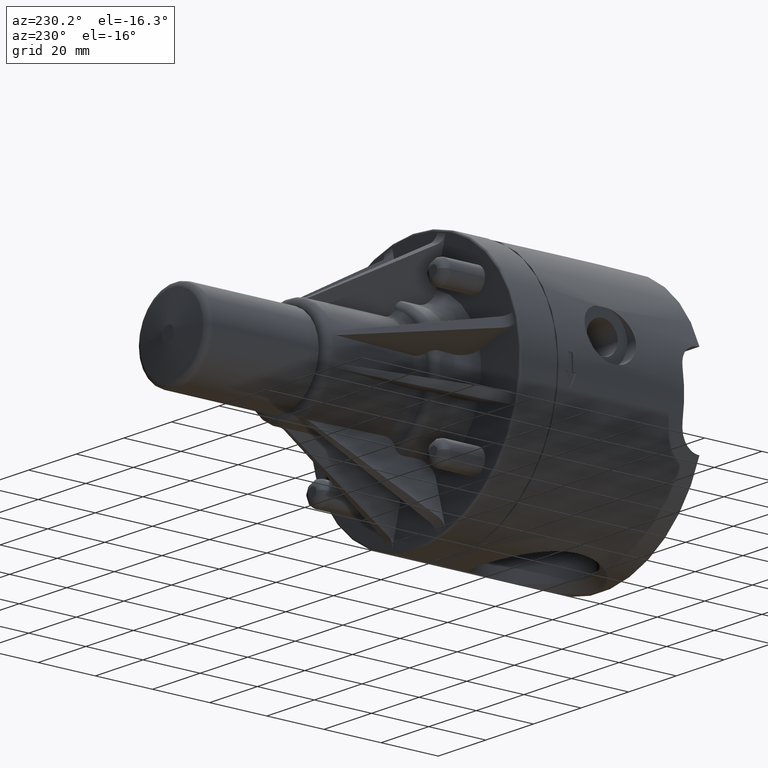
[diagram: clean part render]
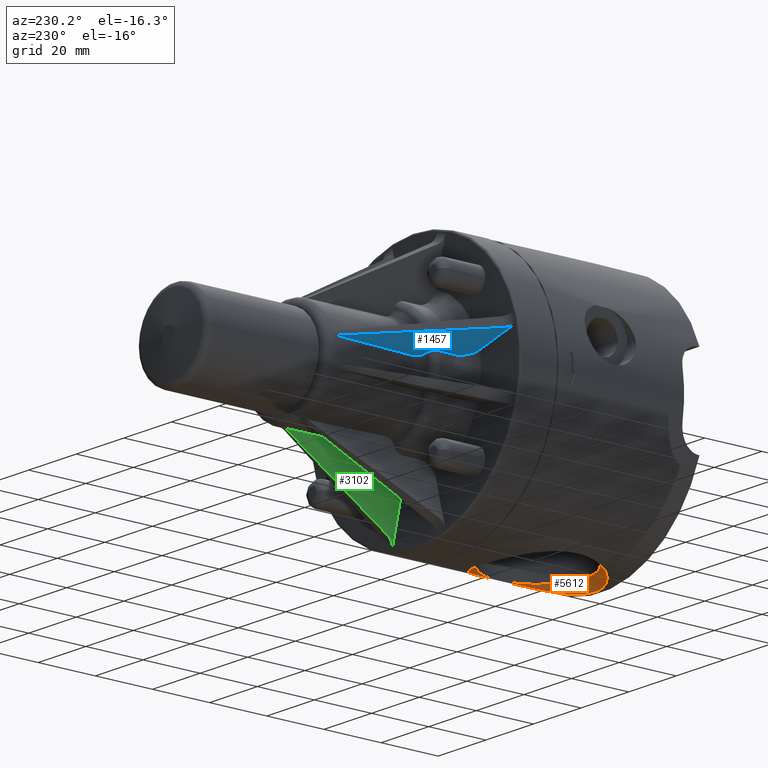
[diagram: same view with three faces highlighted in distinct colors, each labeled with its STEP entity id]
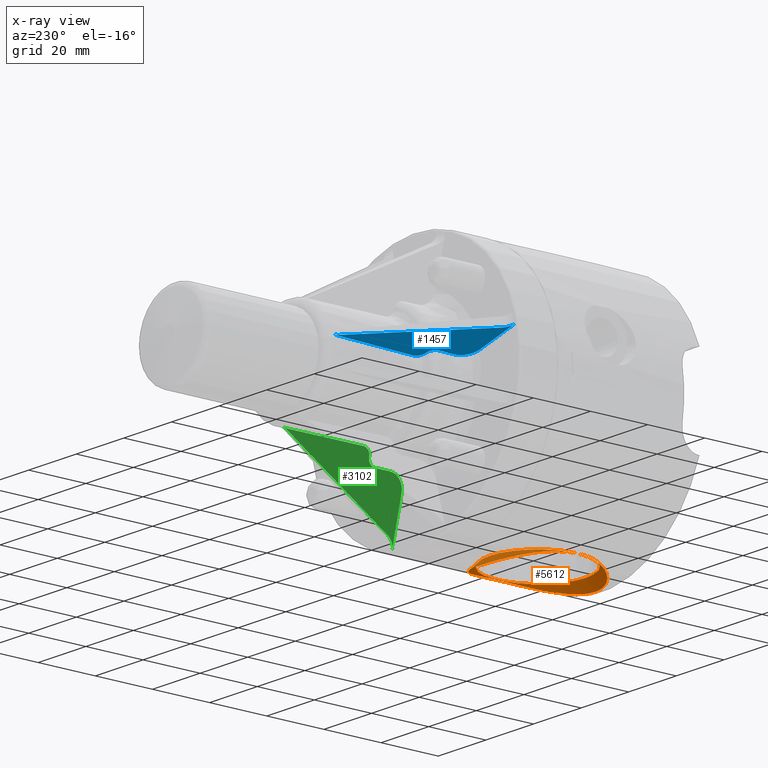
[diagram: x-ray of the same camera — body ghosted, the three highlighted faces saturated]
A machine part, auxiliary view with three faces highlighted in distinct colors.
The next image is the same camera in x-ray (body ghosted, the three faces saturated) — at least one of them is partly hidden behind the body in this view.
Their STEP definitions:

[orange] entity #5612 — the highlighted conical surface has half-angle 45 deg.
#5523=CARTESIAN_POINT('',(0.0,0.858000000000000,-1.685000000000001));
#5524=DIRECTION('',(0.0,0.0,-1.0));
#5525=DIRECTION('',(0.0,1.0,0.0));
#5526=AXIS2_PLACEMENT_3D('',#5523,#5524,#5525);
#5527=CONICAL_SURFACE('',#5526,0.722500000000000,45.000000000000121);
#5528=CARTESIAN_POINT('',(0.0,0.070499999999999,-1.750000000000001));
#5529=VERTEX_POINT('',#5528);
#5530=CARTESIAN_POINT('',(0.0,1.645500000000000,-1.750000000000001));
#5531=VERTEX_POINT('',#5530);
#5532=CARTESIAN_POINT('',(-8.326673E-017,0.070500000000000,-1.750000000000000));
#5533=CARTESIAN_POINT('',(0.046979436653502,0.070500000000000,-1.750000000000000));
#5534=CARTESIAN_POINT('',(0.094644398093947,0.076690375638258,-1.748060443904974));
#5535=CARTESIAN_POINT('',(0.187569108214561,0.101385061686020,-1.740543221869781));
#5536=CARTESIAN_POINT('',(0.232832567383428,0.119878366406201,-1.734975276460539));
#5537=CARTESIAN_POINT('',(0.317788739443529,0.167117370241530,-1.721441390619523));
#5538=CARTESIAN_POINT('',(0.357586828449183,0.195909647458986,-1.713474830616159));
#5539=CARTESIAN_POINT('',(0.429568100615000,0.260483991816263,-1.696860507389469));
#5540=CARTESIAN_POINT('',(0.461754034021425,0.296267477217352,-1.688230176587454));
#5541=CARTESIAN_POINT('',(0.542618125327997,0.403932654220336,-1.664668569603786));
#5542=CARTESIAN_POINT('',(0.586890863196060,0.489508198617011,-1.648945704874737));
#5543=CARTESIAN_POINT('',(0.630455857188645,0.626124288732948,-1.632564267465237));
#5544=CARTESIAN_POINT('',(0.641303903651708,0.673021654527938,-1.628277433428841));
#5545=CARTESIAN_POINT('',(0.655463253852306,0.766529891641007,-1.622629353795142));
#5546=CARTESIAN_POINT('',(0.658771244319595,0.813141454037205,-1.621271244319597));
#5547=CARTESIAN_POINT('',(0.658771244319595,0.902858545962794,-1.621271244319597));
#5548=CARTESIAN_POINT('',(0.655463253852307,0.949470108358992,-1.622629353795142));
#5549=CARTESIAN_POINT('',(0.641303903651708,1.042978345472062,-1.628277433428841));
#5550=CARTESIAN_POINT('',(0.630455857188645,1.089875711267051,-1.632564267465237));
#5551=CARTESIAN_POINT('',(0.586890863196060,1.226491801382988,-1.648945704874737));
#5552=CARTESIAN_POINT('',(0.542618125327998,1.312067345779663,-1.664668569603786));
#5553=CARTESIAN_POINT('',(0.461754034021425,1.419732522782648,-1.688230176587454));
#5554=CARTESIAN_POINT('',(0.429568100615000,1.455516008183736,-1.696860507389469));
#5555=CARTESIAN_POINT('',(0.357586828449184,1.520090352541014,-1.713474830616159));
#5556=CARTESIAN_POINT('',(0.317788739443529,1.548882629758470,-1.721441390619523));
#5557=CARTESIAN_POINT('',(0.232832567383428,1.596121633593798,-1.734975276460539));
#5558=CARTESIAN_POINT('',(0.187569108214561,1.614614938313979,-1.740543221869781));
#5559=CARTESIAN_POINT('',(0.094644398093947,1.639309624361742,-1.748060443904975));
#5560=CARTESIAN_POINT('',(0.046979436653503,1.645500000000000,-1.750000000000000));
#5561=CARTESIAN_POINT('',(1.804112E-016,1.645500000000000,-1.750000000000000));
#5562=B_SPLINE_CURVE_WITH_KNOTS('',3,(#5532,#5533,#5534,#5535,#5536,#5537,#5538,#5539,#5540,#5541,#5542,#5543,#5544,#5545,#5546,#5547,#5548,#5549,#5550,#5551,#5552,#5553,#5554,#5555,#5556,#5557,#5558,#5559,#5560,#5561),.UNSPECIFIED.,.F.,.U.,(4,2,2,2,2,2,2,2,2,2,2,2,2,2,4),(2.799221710144743,3.157205017444432,3.515188324744122,3.873171632043811,4.231154939343500,4.914799179816493,5.256621300052990,5.598443420289486,5.940265540525981,6.282087660762478,6.965731901235472,7.323715208535161,7.681698515834850,8.039681823134540,8.397665130434229),.UNSPECIFIED.);
#5563=EDGE_CURVE('',#5529,#5531,#5562,.T.);
#5564=ORIENTED_EDGE('',*,*,#5563,.F.);
#5565=CARTESIAN_POINT('',(1.804112E-016,1.645500000000000,-1.750000000000000));
#5566=CARTESIAN_POINT('',(-0.046979436653502,1.645500000000000,-1.750000000000000));
#5567=CARTESIAN_POINT('',(-0.094644398093946,1.639309624361742,-1.748060443904975));
#5568=CARTESIAN_POINT('',(-0.187569108214561,1.614614938313979,-1.740543221869781));
#5569=CARTESIAN_POINT('',(-0.232832567383428,1.596121633593798,-1.734975276460539));
#5570=CARTESIAN_POINT('',(-0.317788739443529,1.548882629758469,-1.721441390619523));
#5571=CARTESIAN_POINT('',(-0.357586828449183,1.520090352541014,-1.713474830616159));
#5572=CARTESIAN_POINT('',(-0.429568100615000,1.455516008183736,-1.696860507389469));
#5573=CARTESIAN_POINT('',(-0.461754034021425,1.419732522782648,-1.688230176587454));
#5574=CARTESIAN_POINT('',(-0.542618125327997,1.312067345779663,-1.664668569603786));
#5575=CARTESIAN_POINT('',(-0.586890863196060,1.226491801382989,-1.648945704874737));
#5576=CARTESIAN_POINT('',(-0.630455857188645,1.089875711267052,-1.632564267465237));
#5577=CARTESIAN_POINT('',(-0.641303903651708,1.042978345472062,-1.628277433428841));
#5578=CARTESIAN_POINT('',(-0.655463253852306,0.949470108358992,-1.622629353795142));
#5579=CARTESIAN_POINT('',(-0.658771244319595,0.902858545962795,-1.621271244319597));
#5580=CARTESIAN_POINT('',(-0.658771244319595,0.858000000000000,-1.621271244319597));
#5581=CARTESIAN_POINT('',(-0.658771244319595,0.813141454037205,-1.621271244319597));
#5582=CARTESIAN_POINT('',(-0.655463253852307,0.766529891641007,-1.622629353795142));
#5583=CARTESIAN_POINT('',(-0.641303903651708,0.673021654527938,-1.628277433428841));
#5584=CARTESIAN_POINT('',(-0.630455857188645,0.626124288732948,-1.632564267465237));
#5585=CARTESIAN_POINT('',(-0.586890863196060,0.489508198617012,-1.648945704874737));
#5586=CARTESIAN_POINT('',(-0.542618125327998,0.403932654220336,-1.664668569603786));
#5587=CARTESIAN_POINT('',(-0.461754034021425,0.296267477217352,-1.688230176587454));
#5588=CARTESIAN_POINT('',(-0.429568100615000,0.260483991816264,-1.696860507389469));
#5589=CARTESIAN_POINT('',(-0.357586828449184,0.195909647458986,-1.713474830616159));
#5590=CARTESIAN_POINT('',(-0.317788739443530,0.167117370241530,-1.721441390619523));
#5591=CARTESIAN_POINT('',(-0.232832567383428,0.119878366406201,-1.734975276460539));
#5592=CARTESIAN_POINT('',(-0.187569108214562,0.101385061686020,-1.740543221869781));
#5593=CARTESIAN_POINT('',(-0.094644398093947,0.076690375638258,-1.748060443904975));
#5594=CARTESIAN_POINT('',(-0.046979436653503,0.070500000000000,-1.750000000000000));
#5595=CARTESIAN_POINT('',(-9.714451E-017,0.070500000000000,-1.750000000000000));
#5596=B_SPLINE_CURVE_WITH_KNOTS('',3,(#5565,#5566,#5567,#5568,#5569,#5570,#5571,#5572,#5573,#5574,#5575,#5576,#5577,#5578,#5579,#5580,#5581,#5582,#5583,#5584,#5585,#5586,#5587,#5588,#5589,#5590,#5591,#5592,#5593,#5594,#5595),.UNSPECIFIED.,.F.,.U.,(4,2,2,2,2,2,2,3,2,2,2,2,2,2,4),(8.397665130434229,8.755648437733917,9.113631745033608,9.471615052333297,9.829598359632985,10.513242600105979,10.855064720342476,11.196886840578973,11.538708960815470,11.880531081051966,12.564175321524958,12.922158628824647,13.280141936124338,13.638125243424026,13.996108550723715),.UNSPECIFIED.);
#5597=EDGE_CURVE('',#5531,#5529,#5596,.T.);
#5598=ORIENTED_EDGE('',*,*,#5597,.F.);
#5599=EDGE_LOOP('',(#5564,#5598));
#5600=FACE_OUTER_BOUND('',#5599,.T.);
#5601=CARTESIAN_POINT('',(0.0,1.515500000000000,-1.620000000000001));
#5602=VERTEX_POINT('',#5601);
#5603=CARTESIAN_POINT('',(0.0,0.858000000000000,-1.620000000000001));
#5604=DIRECTION('',(0.0,0.0,1.0));
#5605=DIRECTION('',(0.0,1.0,0.0));
#5606=AXIS2_PLACEMENT_3D('',#5603,#5604,#5605);
#5607=CIRCLE('',#5606,0.657500000000000);
#5608=EDGE_CURVE('',#5602,#5602,#5607,.T.);
#5609=ORIENTED_EDGE('',*,*,#5608,.T.);
#5610=EDGE_LOOP('',(#5609));
#5611=FACE_BOUND('',#5610,.T.);
#5612=ADVANCED_FACE('',(#5600,#5611),#5527,.F.);

[blue] entity #1457 — the highlighted planar face has unit normal (0.2587, -0.0262, 0.9656).
#1170=CARTESIAN_POINT('',(-1.536881267281477,2.632278556963049,0.341431757273109));
#1171=VERTEX_POINT('',#1170);
#1178=CARTESIAN_POINT('',(-1.664127680645382,2.555000000000001,0.373432335502499));
#1179=VERTEX_POINT('',#1178);
#1180=CARTESIAN_POINT('',(-1.663111068363032,2.705000000000000,0.377226384191828));
#1181=DIRECTION('',(-0.258730354279913,0.026176948307873,-0.965594827632935));
#1182=DIRECTION('',(-0.006775092764930,-0.999657324975557,-0.025284990423958));
#1183=AXIS2_PLACEMENT_3D('',#1180,#1181,#1182);
#1184=ELLIPSE('',#1183,0.150051418873630,0.150000000000000);
#1185=EDGE_CURVE('',#1171,#1179,#1184,.T.);
#1210=CARTESIAN_POINT('',(-0.701026602313353,4.173880267457618,0.159257474361927));
#1211=VERTEX_POINT('',#1210);
#1219=CARTESIAN_POINT('',(-0.701026602313353,4.173880267457618,0.159257474361927));
#1220=DIRECTION('',(-0.474093470997399,-0.874390413136919,0.103328535128912));
#1221=VECTOR('',#1220,1.763058797687405);
#1222=LINE('',#1219,#1221);
#1223=EDGE_CURVE('',#1211,#1171,#1222,.T.);
#1249=CARTESIAN_POINT('',(-0.682343417455201,4.246826314709518,0.156228872669415));
#1250=VERTEX_POINT('',#1249);
#1251=CARTESIAN_POINT('',(-0.701026602313353,4.173880267457619,0.159257474361927));
#1252=CARTESIAN_POINT('',(-0.695000985830098,4.184993563903389,0.157944192989050));
#1253=CARTESIAN_POINT('',(-0.690356489269742,4.196843569171221,0.157020953510493));
#1254=CARTESIAN_POINT('',(-0.684051562241608,4.221453470614590,0.155998719486961));
#1255=CARTESIAN_POINT('',(-0.682417754832493,4.234115211044678,0.155904197600084));
#1256=CARTESIAN_POINT('',(-0.682343417455202,4.246826314709518,0.156228872669415));
#1257=B_SPLINE_CURVE_WITH_KNOTS('',3,(#1251,#1252,#1253,#1254,#1255,#1256),.UNSPECIFIED.,.F.,.U.,(4,2,4),(-0.193739459944156,-0.096891857130675,0.0),.UNSPECIFIED.);
#1258=EDGE_CURVE('',#1250,#1211,#1257,.F.);
#1370=CARTESIAN_POINT('',(1.195440544694281,3.033713207108848,-0.379808908483760));
#1371=DIRECTION('',(0.258730354279913,-0.026176948307873,0.965594827632935));
#1372=DIRECTION('',(0.965925826289069,9.732823E-018,-0.258819045102520));
#1373=AXIS2_PLACEMENT_3D('',#1370,#1371,#1372);
#1374=PLANE('',#1373);
#1375=CARTESIAN_POINT('',(-1.078482179354142,2.555000000000000,0.216509096380592));
#1376=VERTEX_POINT('',#1375);
#1377=CARTESIAN_POINT('',(-1.664127680645382,2.555000000000001,0.373432335502499));
#1378=DIRECTION('',(0.965925826289069,0.0,-0.258819045102520));
#1379=VECTOR('',#1378,0.606304837651143);
#1380=LINE('',#1377,#1379);
#1381=EDGE_CURVE('',#1179,#1376,#1380,.T.);
#1382=ORIENTED_EDGE('',*,*,#1381,.F.);
#1383=ORIENTED_EDGE('',*,*,#1185,.F.);
#1384=ORIENTED_EDGE('',*,*,#1223,.F.);
#1385=ORIENTED_EDGE('',*,*,#1258,.F.);
#1386=CARTESIAN_POINT('',(-0.688162459202931,3.155000000000000,0.128189039093733));
#1387=VERTEX_POINT('',#1386);
#1388=CARTESIAN_POINT('',(-2.362782E-017,5.228192150791822,-4.056511E-033));
#1389=DIRECTION('',(0.258730354279913,-0.026176948307873,0.965594827632935));
#1390=DIRECTION('',(0.006775092764742,0.999657324975557,0.025284990424009));
#1391=AXIS2_PLACEMENT_3D('',#1388,#1389,#1390);
#1392=ELLIPSE('',#1391,26.741085009877246,0.700000000000000);
#1393=EDGE_CURVE('',#1387,#1250,#1392,.F.);
#1394=ORIENTED_EDGE('',*,*,#1393,.F.);
#1395=CARTESIAN_POINT('',(-0.785511766587942,3.055000000000000,0.151562741305009));
#1396=VERTEX_POINT('',#1395);
#1397=CARTESIAN_POINT('',(-0.785511766587944,3.055000000000000,0.151562741305010));
#1398=CARTESIAN_POINT('',(-0.773551489720114,3.055000000000000,0.148357994777022));
#1399=CARTESIAN_POINT('',(-0.759454529887154,3.057893656764100,0.144659171827574));
#1400=CARTESIAN_POINT('',(-0.737311355469627,3.067354889651928,0.138982416939468));
#1401=CARTESIAN_POINT('',(-0.725343441787702,3.075587286834391,0.135998801629014));
#1402=CARTESIAN_POINT('',(-0.708360636729014,3.093047231230306,0.131921605899578));
#1403=CARTESIAN_POINT('',(-0.700337038189733,3.105357319234435,0.130105411461567));
#1404=CARTESIAN_POINT('',(-0.691086109678909,3.128153870403676,0.128244639408890));
#1405=CARTESIAN_POINT('',(-0.688221763779662,3.142670159398393,0.127870671909975));
#1406=CARTESIAN_POINT('',(-0.688162459202931,3.155000000000000,0.128189039093733));
#1407=B_SPLINE_CURVE_WITH_KNOTS('',3,(#1397,#1398,#1399,#1400,#1401,#1402,#1403,#1404,#1405,#1406),.UNSPECIFIED.,.F.,.U.,(4,2,2,2,4),(0.376854774728702,0.471207060641792,0.565372503968186,0.659390030644902,0.753375817397423),.UNSPECIFIED.);
#1408=EDGE_CURVE('',#1396,#1387,#1407,.T.);
#1409=ORIENTED_EDGE('',*,*,#1408,.F.);
#1410=CARTESIAN_POINT('',(-0.882836101336889,2.955000000000000,0.174929752118619));
#1411=VERTEX_POINT('',#1410);
#1412=CARTESIAN_POINT('',(-0.882836101336888,2.955000000000000,0.174929752118619));
#1413=CARTESIAN_POINT('',(-0.882773194903623,2.967332582950760,0.175247228531982));
#1414=CARTESIAN_POINT('',(-0.879905528031789,2.981851543244706,0.174872443599161));
#1415=CARTESIAN_POINT('',(-0.870652870378624,3.004649469832383,0.173011245511317));
#1416=CARTESIAN_POINT('',(-0.862631384190243,3.016959886403182,0.171195625983356));
#1417=CARTESIAN_POINT('',(-0.845655331111156,3.034417600930554,0.167120178990421));
#1418=CARTESIAN_POINT('',(-0.833694307081620,3.042648294680131,0.164138363577273));
#1419=CARTESIAN_POINT('',(-0.811560618327808,3.052107735331143,0.158464101778167));
#1420=CARTESIAN_POINT('',(-0.797468156378785,3.055000000000000,0.154766446293857));
#1421=CARTESIAN_POINT('',(-0.785511766587942,3.055000000000000,0.151562741305009));
#1422=B_SPLINE_CURVE_WITH_KNOTS('',3,(#1412,#1413,#1414,#1415,#1416,#1417,#1418,#1419,#1420,#1421),.UNSPECIFIED.,.F.,.U.,(4,2,2,2,4),(0.0,0.094006637274788,0.188018182703629,0.282140015038897,0.376461636561581),.UNSPECIFIED.);
#1423=EDGE_CURVE('',#1411,#1396,#1422,.T.);
#1424=ORIENTED_EDGE('',*,*,#1423,.F.);
#1425=CARTESIAN_POINT('',(-0.883841446146808,2.754999999999999,0.169777201276018));
#1426=VERTEX_POINT('',#1425);
#1427=CARTESIAN_POINT('',(-2.362782E-017,5.228192150791820,-4.056511E-033));
#1428=DIRECTION('',(0.258730354279913,-0.026176948307873,0.965594827632935));
#1429=DIRECTION('',(0.006775092764742,0.999657324975557,0.025284990424009));
#1430=AXIS2_PLACEMENT_3D('',#1427,#1428,#1429);
#1431=ELLIPSE('',#1430,34.381395012699279,0.899999999999999);
#1432=EDGE_CURVE('',#1426,#1411,#1431,.F.);
#1433=ORIENTED_EDGE('',*,*,#1432,.F.);
#1434=CARTESIAN_POINT('',(-1.078482179354141,2.555000000000000,0.216509096380592));
#1435=CARTESIAN_POINT('',(-1.066535612349206,2.555000000000000,0.213308023399295));
#1436=CARTESIAN_POINT('',(-1.053479837701843,2.556217885510780,0.209842755589138));
#1437=CARTESIAN_POINT('',(-1.027890422406276,2.561471903867086,0.203128527081712));
#1438=CARTESIAN_POINT('',(-1.015356804658083,2.565508160370529,0.199879575872806));
#1439=CARTESIAN_POINT('',(-0.993233611524415,2.574957053876605,0.194207840437119));
#1440=CARTESIAN_POINT('',(-0.981604253164174,2.581236633620061,0.191262000533206));
#1441=CARTESIAN_POINT('',(-0.959870348228601,2.596183871431072,0.185843632805235));
#1442=CARTESIAN_POINT('',(-0.949765909907674,2.604851699085820,0.183371138585308));
#1443=CARTESIAN_POINT('',(-0.932779151839400,2.622303274375320,0.179292656766509));
#1444=CARTESIAN_POINT('',(-0.924331850848877,2.632693896922299,0.177310895541277));
#1445=CARTESIAN_POINT('',(-0.909738933819802,2.655073180475888,0.174007429995609));
#1446=CARTESIAN_POINT('',(-0.903593424070046,2.667061915289674,0.172685756156058));
#1447=CARTESIAN_POINT('',(-0.894331708342628,2.689869939347136,0.170822404703515));
#1448=CARTESIAN_POINT('',(-0.890362276371969,2.702789140109283,0.170109033763845));
#1449=CARTESIAN_POINT('',(-0.885147738261019,2.729185125918652,0.169427388711543));
#1450=CARTESIAN_POINT('',(-0.883902551677976,2.742661894506163,0.169459092598122));
#1451=CARTESIAN_POINT('',(-0.883841446146808,2.755000000000000,0.169777201276019));
#1452=B_SPLINE_CURVE_WITH_KNOTS('',3,(#1434,#1435,#1436,#1437,#1438,#1439,#1440,#1441,#1442,#1443,#1444,#1445,#1446,#1447,#1448,#1449,#1450,#1451),.UNSPECIFIED.,.F.,.U.,(4,2,2,2,2,2,2,2,4),(0.753448376052435,0.847692507537499,0.941936639022563,1.036029227545029,1.130121816067495,1.224189454701717,1.318257093335939,1.412305853021050,1.506354612706161),.UNSPECIFIED.);
#1453=EDGE_CURVE('',#1376,#1426,#1452,.T.);
#1454=ORIENTED_EDGE('',*,*,#1453,.F.);
#1455=EDGE_LOOP('',(#1382,#1383,#1384,#1385,#1394,#1409,#1424,#1433,#1454));
#1456=FACE_OUTER_BOUND('',#1455,.T.);
#1457=ADVANCED_FACE('',(#1456),#1374,.F.);

[green] entity #3102 — the highlighted planar face has unit normal (0.9656, -0.0262, 0.2587).
#2068=CARTESIAN_POINT('',(0.156228872669417,4.246826314709518,-0.682343417455201));
#2069=VERTEX_POINT('',#2068);
#2077=CARTESIAN_POINT('',(0.128189039093734,3.155000000000000,-0.688162459202931));
#2078=VERTEX_POINT('',#2077);
#2079=CARTESIAN_POINT('',(-2.362782E-017,5.228192150791780,-4.056511E-033));
#2080=DIRECTION('',(0.965594827632935,-0.026176948307873,0.258730354279914));
#2081=DIRECTION('',(0.025284990424009,0.999657324975557,0.006775092764742));
#2082=AXIS2_PLACEMENT_3D('',#2079,#2080,#2081);
#2083=ELLIPSE('',#2082,26.741085009877033,0.700000000000000);
#2084=EDGE_CURVE('',#2069,#2078,#2083,.F.);
#2252=CARTESIAN_POINT('',(0.216509096380593,2.555000000000000,-1.078482179354141));
#2253=VERTEX_POINT('',#2252);
#2261=CARTESIAN_POINT('',(0.373432335502500,2.555000000000001,-1.664127680645381));
#2262=VERTEX_POINT('',#2261);
#2263=CARTESIAN_POINT('',(0.216509096380593,2.555000000000001,-1.078482179354141));
#2264=DIRECTION('',(0.258819045102521,0.0,-0.965925826289068));
#2265=VECTOR('',#2264,0.606304837651144);
#2266=LINE('',#2263,#2265);
#2267=EDGE_CURVE('',#2253,#2262,#2266,.T.);
#2853=CARTESIAN_POINT('',(0.341431757273110,2.632278556963049,-1.536881267281476));
#2854=VERTEX_POINT('',#2853);
#2855=CARTESIAN_POINT('',(0.377226384191829,2.705000000000000,-1.663111068363031));
#2856=DIRECTION('',(-0.965594827632935,0.026176948307873,-0.258730354279914));
#2857=DIRECTION('',(-0.025284990423993,-0.999657324975557,-0.006775092764799));
#2858=AXIS2_PLACEMENT_3D('',#2855,#2856,#2857);
#2859=ELLIPSE('',#2858,0.150051418873630,0.150000000000000);
#2860=EDGE_CURVE('',#2262,#2854,#2859,.T.);
#2887=CARTESIAN_POINT('',(0.159257474361929,4.173880267457618,-0.701026602313353));
#2888=VERTEX_POINT('',#2887);
#2889=CARTESIAN_POINT('',(0.341431757273110,2.632278556963049,-1.536881267281476));
#2890=DIRECTION('',(-0.103328535128913,0.874390413136919,0.474093470997399));
#2891=VECTOR('',#2890,1.763058797687405);
#2892=LINE('',#2889,#2891);
#2893=EDGE_CURVE('',#2854,#2888,#2892,.T.);
#2944=CARTESIAN_POINT('',(0.156228872669416,4.246826314709518,-0.682343417455201));
#2945=CARTESIAN_POINT('',(0.155904194299456,4.234115081824291,-0.682417755588202));
#2946=CARTESIAN_POINT('',(0.155998721421980,4.221453213696557,-0.684051595456808));
#2947=CARTESIAN_POINT('',(0.157020972236860,4.196843328579899,-0.690356583499255));
#2948=CARTESIAN_POINT('',(0.157944206345996,4.184993450873777,-0.695001047114622));
#2949=CARTESIAN_POINT('',(0.159257474361929,4.173880267457618,-0.701026602313353));
#2950=B_SPLINE_CURVE_WITH_KNOTS('',3,(#2944,#2945,#2946,#2947,#2948,#2949),.UNSPECIFIED.,.F.,.U.,(4,2,4),(-0.193741069388911,-0.096847422340012,0.0),.UNSPECIFIED.);
#2951=EDGE_CURVE('',#2888,#2069,#2950,.F.);
#3030=CARTESIAN_POINT('',(-0.379808908483760,3.033713207108848,1.195440544694281));
#3031=DIRECTION('',(0.965594827632935,-0.026176948307873,0.258730354279914));
#3032=DIRECTION('',(0.258819045102521,2.904407E-018,-0.965925826289068));
#3033=AXIS2_PLACEMENT_3D('',#3030,#3031,#3032);
#3034=PLANE('',#3033);
#3035=ORIENTED_EDGE('',*,*,#2084,.F.);
#3036=ORIENTED_EDGE('',*,*,#2951,.F.);
#3037=ORIENTED_EDGE('',*,*,#2893,.F.);
#3038=ORIENTED_EDGE('',*,*,#2860,.F.);
#3039=ORIENTED_EDGE('',*,*,#2267,.F.);
#3040=CARTESIAN_POINT('',(0.169777201276019,2.754999999999999,-0.883841446146807));
#3041=VERTEX_POINT('',#3040);
#3042=CARTESIAN_POINT('',(0.169777201276019,2.754999999999999,-0.883841446146808));
#3043=CARTESIAN_POINT('',(0.169459258183504,2.742668316870702,-0.883902519870662));
#3044=CARTESIAN_POINT('',(0.169427404185678,2.729198462285150,-0.885146446709306));
#3045=CARTESIAN_POINT('',(0.170107995041851,2.702815448862291,-0.890355738030310));
#3046=CARTESIAN_POINT('',(0.170820461882911,2.689902306465822,-0.894321182906108));
#3047=CARTESIAN_POINT('',(0.172681597667169,2.667104256549482,-0.903573620516857));
#3048=CARTESIAN_POINT('',(0.174001770710344,2.655120164942666,-0.909713059443535));
#3049=CARTESIAN_POINT('',(0.177301667193146,2.632747807437338,-0.924291955808275));
#3050=CARTESIAN_POINT('',(0.179281360218987,2.622359467939642,-0.932731307186917));
#3051=CARTESIAN_POINT('',(0.183357829214252,2.604900833874389,-0.949711267464533));
#3052=CARTESIAN_POINT('',(0.185830703442089,2.596224809320838,-0.959817953312509));
#3053=CARTESIAN_POINT('',(0.191250491258328,2.581263136446866,-0.981558618551826));
#3054=CARTESIAN_POINT('',(0.194197371182600,2.574977318333861,-0.993192489485627));
#3055=CARTESIAN_POINT('',(0.199871445877171,2.565518886255935,-1.015325377913795));
#3056=CARTESIAN_POINT('',(0.203121865839907,2.561478534624186,-1.027864891449007));
#3057=CARTESIAN_POINT('',(0.209839325671551,2.556219153416959,-1.053466908795196));
#3058=CARTESIAN_POINT('',(0.213306356034641,2.555000000000000,-1.066529389659599));
#3059=CARTESIAN_POINT('',(0.216509096380593,2.555000000000000,-1.078482179354141));
#3060=B_SPLINE_CURVE_WITH_KNOTS('',3,(#3042,#3043,#3044,#3045,#3046,#3047,#3048,#3049,#3050,#3051,#3052,#3053,#3054,#3055,#3056,#3057,#3058,#3059),.UNSPECIFIED.,.F.,.U.,(4,2,2,2,2,2,2,2,4),(1.506165114365754,1.600164918770038,1.694164723174322,1.788183305215149,1.882201887255975,1.976343395083373,2.070484902910770,2.164778123977573,2.259071345044376),.UNSPECIFIED.);
#3061=EDGE_CURVE('',#3041,#2253,#3060,.T.);
#3062=ORIENTED_EDGE('',*,*,#3061,.F.);
#3063=CARTESIAN_POINT('',(0.174929752118620,2.955000000000000,-0.882836101336888));
#3064=VERTEX_POINT('',#3063);
#3065=CARTESIAN_POINT('',(-2.362782E-017,5.228192150791781,-4.056511E-033));
#3066=DIRECTION('',(0.965594827632935,-0.026176948307873,0.258730354279914));
#3067=DIRECTION('',(0.025284990424009,0.999657324975557,0.006775092764742));
#3068=AXIS2_PLACEMENT_3D('',#3065,#3066,#3067);
#3069=ELLIPSE('',#3068,34.381395012699016,0.899999999999999);
#3070=EDGE_CURVE('',#3064,#3041,#3069,.F.);
#3071=ORIENTED_EDGE('',*,*,#3070,.F.);
#3072=CARTESIAN_POINT('',(0.151562741305010,3.055000000000000,-0.785511766587941));
#3073=VERTEX_POINT('',#3072);
#3074=CARTESIAN_POINT('',(0.151562741305010,3.054999999999999,-0.785511766587942));
#3075=CARTESIAN_POINT('',(0.154766446293858,3.054999999999999,-0.797468156378785));
#3076=CARTESIAN_POINT('',(0.158464101778168,3.052107735331143,-0.811560618327808));
#3077=CARTESIAN_POINT('',(0.164138363577274,3.042648294680131,-0.833694307081620));
#3078=CARTESIAN_POINT('',(0.167120178990422,3.034417600930554,-0.845655331111156));
#3079=CARTESIAN_POINT('',(0.171195625983357,3.016959886403182,-0.862631384190243));
#3080=CARTESIAN_POINT('',(0.173011245511318,3.004649469832382,-0.870652870378624));
#3081=CARTESIAN_POINT('',(0.174872443599162,2.981851543244706,-0.879905528031789));
#3082=CARTESIAN_POINT('',(0.175247228531983,2.967332582950760,-0.882773194903622));
#3083=CARTESIAN_POINT('',(0.174929752118620,2.955000000000000,-0.882836101336888));
#3084=B_SPLINE_CURVE_WITH_KNOTS('',3,(#3074,#3075,#3076,#3077,#3078,#3079,#3080,#3081,#3082,#3083),.UNSPECIFIED.,.F.,.U.,(4,2,2,2,4),(1.130573358054646,1.224894979577330,1.319016811912598,1.413028357341439,1.507034994616227),.UNSPECIFIED.);
#3085=EDGE_CURVE('',#3073,#3064,#3084,.T.);
#3086=ORIENTED_EDGE('',*,*,#3085,.F.);
#3087=CARTESIAN_POINT('',(0.128189039093734,3.155000000000000,-0.688162459202931));
#3088=CARTESIAN_POINT('',(0.127870671909976,3.142670159398393,-0.688221763779662));
#3089=CARTESIAN_POINT('',(0.128244639408892,3.128153870403676,-0.691086109678909));
#3090=CARTESIAN_POINT('',(0.130105411461568,3.105357319234435,-0.700337038189733));
#3091=CARTESIAN_POINT('',(0.131921605899579,3.093047231230306,-0.708360636729014));
#3092=CARTESIAN_POINT('',(0.135998801629015,3.075587286834391,-0.725343441787702));
#3093=CARTESIAN_POINT('',(0.138982416939469,3.067354889651928,-0.737311355469627));
#3094=CARTESIAN_POINT('',(0.144659171827575,3.057893656764100,-0.759454529887154));
#3095=CARTESIAN_POINT('',(0.148357994777023,3.055000000000000,-0.773551489720113));
#3096=CARTESIAN_POINT('',(0.151562741305011,3.055000000000000,-0.785511766587943));
#3097=B_SPLINE_CURVE_WITH_KNOTS('',3,(#3087,#3088,#3089,#3090,#3091,#3092,#3093,#3094,#3095,#3096),.UNSPECIFIED.,.F.,.U.,(4,2,2,2,4),(0.753301487620377,0.847287274372898,0.941304801049614,1.035470244376007,1.129822530289097),.UNSPECIFIED.);
#3098=EDGE_CURVE('',#2078,#3073,#3097,.T.);
#3099=ORIENTED_EDGE('',*,*,#3098,.F.);
#3100=EDGE_LOOP('',(#3035,#3036,#3037,#3038,#3039,#3062,#3071,#3086,#3099));
#3101=FACE_OUTER_BOUND('',#3100,.T.);
#3102=ADVANCED_FACE('',(#3101),#3034,.F.);